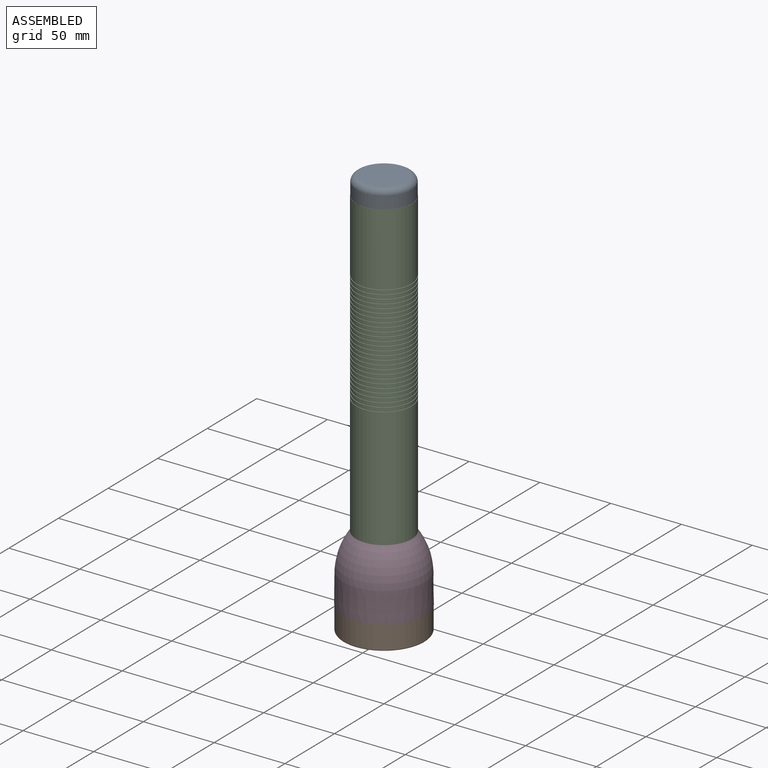
[diagram: assembled view]
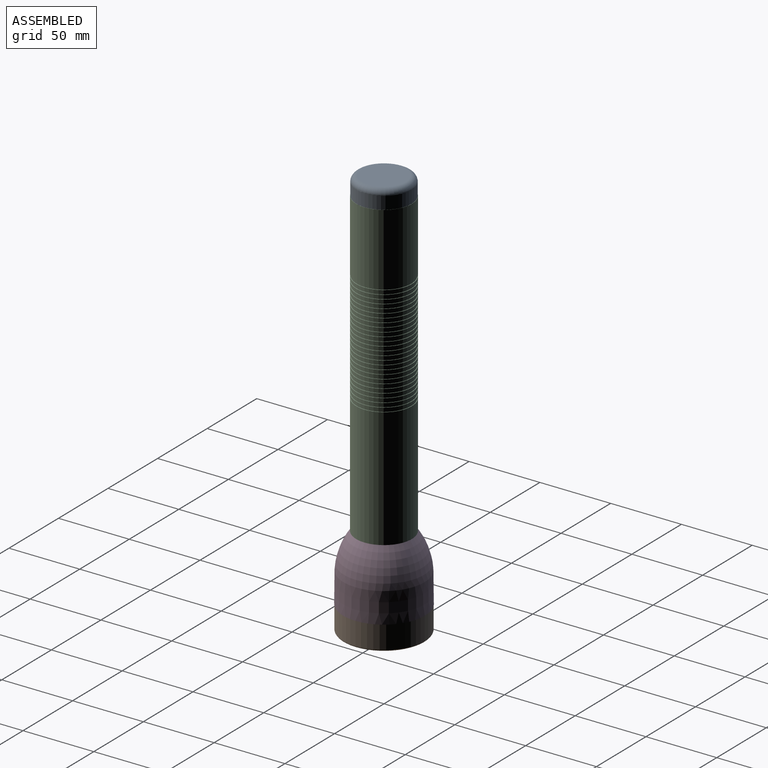
[diagram: assembled view, second angle]
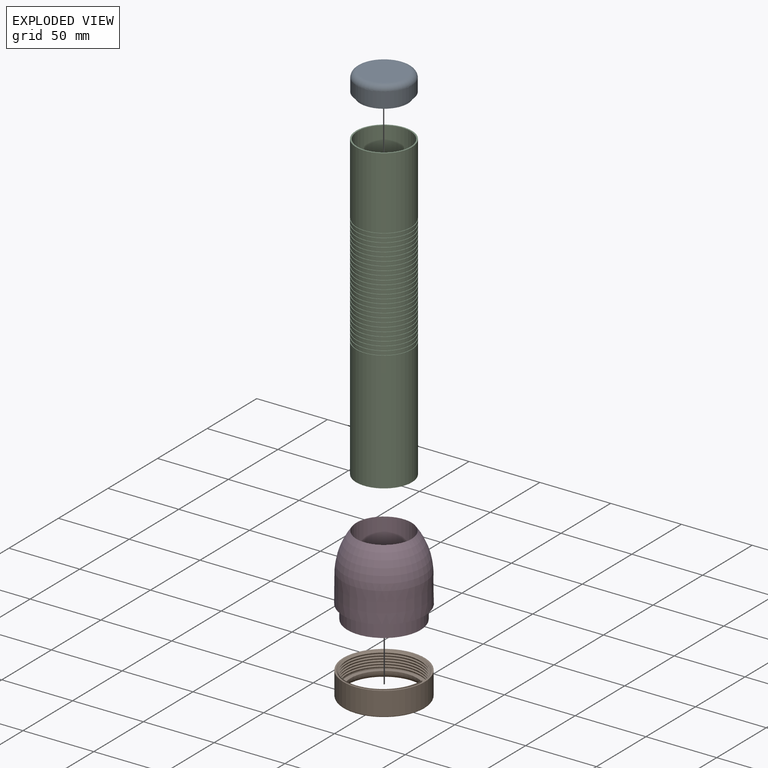
[diagram: exploded view]
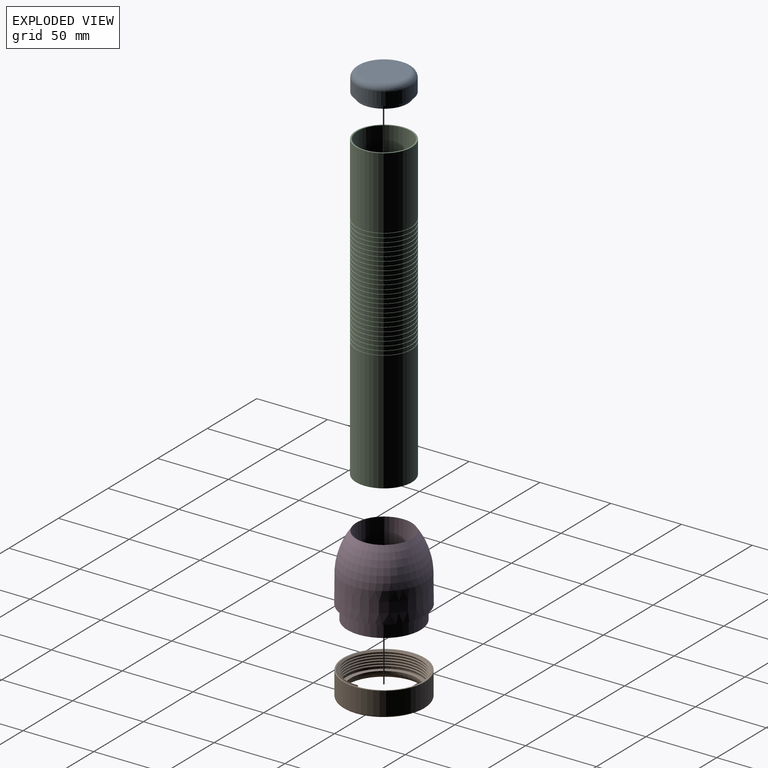
[diagram: exploded view, second angle]
ASSEMBLY  parts=4 mates=3
PART A: 6 faces, bbox 42.3x42.3x16 mm
  f0: cylinder r=19.56mm len=39.12mm, axis (0,0,-1), area 1096.3mm2, adj f1,f5
  f1: plane 39.12x39.12mm, normal (0,0,1), area 306.3mm2, adj f0,f3
  f2: plane 31.12x31.12mm, normal (0,0,-1), area 760.6mm2, adj f5
  f3: cylinder r=16.89mm len=33.77mm, axis (0,0,-1), area 328.9mm2, adj f1,f4
  f4: plane 33.77x33.77mm, normal (0,0,1), area 895.7mm2, adj f3
  f5: torus R=15.56mm, axis (0,0,1), area 714.8mm2, adj f0,f2
PART B: 20 faces, bbox 62.2x62.6x17.9 mm
  f0: cylinder r=23.7mm len=47.4mm, axis (0,0,-1), area 74.5mm2, adj f1,f11
  f1: plane 53.5x53.5mm, normal (0,0,1), area 483.4mm2, adj f0,f8
  f2: cylinder r=26.75mm len=26.04mm, axis (0,0,-1), area 6.7mm2, adj f3,f13,f17
  f3: cylinder r=26.75mm len=53.5mm, axis (0,0,-1), area 85.9mm2, adj f2,f4,f14,f17,f19
  f4: cylinder r=26.75mm len=53.5mm, axis (0,0,-1), area 86.9mm2, adj f3,f5,f17,f19
  f5: cylinder r=26.75mm len=53.5mm, axis (0,0,-1), area 86.7mm2, adj f4,f6,f17,f19
  f6: cylinder r=26.75mm len=53.5mm, axis (0,0,-1), area 86.9mm2, adj f5,f7,f17,f19
  f7: cylinder r=26.75mm len=53.5mm, axis (0,0,-1), area 86.8mm2, adj f6,f8,f17,f19
  f8: cylinder r=26.75mm len=53.5mm, axis (0,0,-1), area 173.4mm2, adj f1,f7,f15,f19
  f9: cylinder r=28.75mm len=57.5mm, axis (0,0,-1), area 2909.3mm2, adj f10,f12
  f10: plane 57.5x57.5mm, normal (0,0,1), area 177.5mm2, adj f9,f13
  f11: torus R=28.7mm, axis (0,0,1), area 1047.5mm2, adj f0,f12
  f12: torus R=27.75mm, axis (0,0,-1), area 321.8mm2, adj f9,f11
  f13: cone r=26.75mm half-angle=45deg, axis (0,0,1), area 193.8mm2, adj f2,f10,f14,f16,f17,f18
  f14: cone r=26.75mm half-angle=45deg, axis (0,0,1), area 0.6mm2, adj f3,f13,f19
  f15: plane 1.27x0.61mm, normal (0,-1,0), area 0.4mm2, adj f8,f17,f19
  f16: plane 1.61x0.95mm, normal (0,1,0), area 0.7mm2, adj f13,f17,f18,f19
  f17: bspline ~62.56x54.18mm, area 820.1mm2, adj f2,f3,f4,f5,f6,f7,f13,f15
  f18: bspline ~62.56x54.18mm, area 93.8mm2, adj f13,f16,f17
  f19: bspline ~62.15x53.82mm, area 1121mm2, adj f3,f4,f5,f6,f7,f8,f14,f15
PART C: 112 faces, bbox 39.4x39.4x214 mm
  f0: cylinder r=19.7mm len=39.39mm, axis (0,0,-1), area 247.5mm2, adj f27,f31
  f1: cylinder r=19.7mm len=39.39mm, axis (0,0,-1), area 247.5mm2, adj f30,f34
  f2: cylinder r=19.7mm len=39.39mm, axis (0,0,-1), area 247.5mm2, adj f33,f37
  f3: cylinder r=19.7mm len=39.39mm, axis (0,0,-1), area 247.5mm2, adj f36,f40
  f4: cylinder r=19.7mm len=39.39mm, axis (0,0,-1), area 247.5mm2, adj f39,f43
  f5: cylinder r=19.7mm len=39.39mm, axis (0,0,-1), area 247.5mm2, adj f42,f46
  f6: cylinder r=19.7mm len=39.39mm, axis (0,0,-1), area 247.5mm2, adj f45,f49
  f7: cylinder r=19.7mm len=39.39mm, axis (0,0,-1), area 247.5mm2, adj f48,f52
  f8: cylinder r=19.7mm len=39.39mm, axis (0,0,-1), area 247.5mm2, adj f51,f55
  f9: cylinder r=19.7mm len=39.39mm, axis (0,0,-1), area 247.5mm2, adj f54,f58
  f10: cylinder r=19.7mm len=39.39mm, axis (0,0,-1), area 247.5mm2, adj f57,f61
  f11: cylinder r=19.7mm len=39.39mm, axis (0,0,-1), area 247.5mm2, adj f60,f64
  f12: cylinder r=19.7mm len=39.39mm, axis (0,0,-1), area 247.5mm2, adj f63,f67
  f13: cylinder r=19.7mm len=39.39mm, axis (0,0,-1), area 247.5mm2, adj f66,f70
  f14: cylinder r=19.7mm len=39.39mm, axis (0,0,-1), area 247.5mm2, adj f69,f73
  f15: cylinder r=19.7mm len=39.39mm, axis (0,0,-1), area 247.5mm2, adj f72,f76
  f16: cylinder r=19.7mm len=39.39mm, axis (0,0,-1), area 247.5mm2, adj f75,f79
  f17: cylinder r=19.7mm len=39.39mm, axis (0,0,-1), area 247.5mm2, adj f78,f82
  f18: cylinder r=19.7mm len=39.39mm, axis (0,0,-1), area 247.5mm2, adj f81,f85
  f19: cylinder r=19.7mm len=39.39mm, axis (0,0,-1), area 247.5mm2, adj f84,f88
  f20: cylinder r=19.7mm len=39.39mm, axis (0,0,-1), area 247.5mm2, adj f87,f91
  f21: cylinder r=19.7mm len=39.39mm, axis (0,0,-1), area 247.5mm2, adj f90,f94
  f22: cylinder r=19.7mm len=39.39mm, axis (0,0,-1), area 247.5mm2, adj f93,f97
  f23: cylinder r=19.7mm len=39.39mm, axis (0,0,-1), area 247.5mm2, adj f96,f100
  f24: cylinder r=19.7mm len=39.39mm, axis (0,0,-1), area 247.5mm2, adj f99,f103
  f25: cylinder r=19.7mm len=39.39mm, axis (0,0,-1), area 247.5mm2, adj f102,f110
  f26: cylinder r=19.25mm len=38.5mm, axis (0,0,-1), area 121mm2, adj f27,f28
  f27: plane 39.39x39.39mm, normal (0,0,1), area 54.4mm2, adj f0,f26
  f28: plane 39.39x39.39mm, normal (0,0,-1), area 54.4mm2, adj f26,f104
  f29: cylinder r=19.25mm len=38.5mm, axis (0,0,-1), area 121mm2, adj f30,f31
  f30: plane 39.39x39.39mm, normal (0,0,1), area 54.4mm2, adj f1,f29
  f31: plane 39.39x39.39mm, normal (0,0,-1), area 54.4mm2, adj f0,f29
  f32: cylinder r=19.25mm len=38.5mm, axis (0,0,-1), area 121mm2, adj f33,f34
  f33: plane 39.39x39.39mm, normal (0,0,1), area 54.4mm2, adj f2,f32
  f34: plane 39.39x39.39mm, normal (0,0,-1), area 54.4mm2, adj f1,f32
  f35: cylinder r=19.25mm len=38.5mm, axis (0,0,-1), area 121mm2, adj f36,f37
  f36: plane 39.39x39.39mm, normal (0,0,1), area 54.4mm2, adj f3,f35
  f37: plane 39.39x39.39mm, normal (0,0,-1), area 54.4mm2, adj f2,f35
  f38: cylinder r=19.25mm len=38.5mm, axis (0,0,-1), area 121mm2, adj f39,f40
  f39: plane 39.39x39.39mm, normal (0,0,1), area 54.4mm2, adj f4,f38
  f40: plane 39.39x39.39mm, normal (0,0,-1), area 54.4mm2, adj f3,f38
  f41: cylinder r=19.25mm len=38.5mm, axis (0,0,-1), area 121mm2, adj f42,f43
  f42: plane 39.39x39.39mm, normal (0,0,1), area 54.4mm2, adj f5,f41
  f43: plane 39.39x39.39mm, normal (0,0,-1), area 54.4mm2, adj f4,f41
  f44: cylinder r=19.25mm len=38.5mm, axis (0,0,-1), area 121mm2, adj f45,f46
  f45: plane 39.39x39.39mm, normal (0,0,1), area 54.4mm2, adj f6,f44
  f46: plane 39.39x39.39mm, normal (0,0,-1), area 54.4mm2, adj f5,f44
  f47: cylinder r=19.25mm len=38.5mm, axis (0,0,-1), area 121mm2, adj f48,f49
  f48: plane 39.39x39.39mm, normal (0,0,1), area 54.4mm2, adj f7,f47
  f49: plane 39.39x39.39mm, normal (0,0,-1), area 54.4mm2, adj f6,f47
  f50: cylinder r=19.25mm len=38.5mm, axis (0,0,-1), area 121mm2, adj f51,f52
  f51: plane 39.39x39.39mm, normal (0,0,1), area 54.4mm2, adj f8,f50
  f52: plane 39.39x39.39mm, normal (0,0,-1), area 54.4mm2, adj f7,f50
  f53: cylinder r=19.25mm len=38.5mm, axis (0,0,-1), area 121mm2, adj f54,f55
  f54: plane 39.39x39.39mm, normal (0,0,1), area 54.4mm2, adj f9,f53
  f55: plane 39.39x39.39mm, normal (0,0,-1), area 54.4mm2, adj f8,f53
  f56: cylinder r=19.25mm len=38.5mm, axis (0,0,-1), area 121mm2, adj f57,f58
  f57: plane 39.39x39.39mm, normal (0,0,1), area 54.4mm2, adj f10,f56
  f58: plane 39.39x39.39mm, normal (0,0,-1), area 54.4mm2, adj f9,f56
  f59: cylinder r=19.25mm len=38.5mm, axis (0,0,-1), area 121mm2, adj f60,f61
  f60: plane 39.39x39.39mm, normal (0,0,1), area 54.4mm2, adj f11,f59
  f61: plane 39.39x39.39mm, normal (0,0,-1), area 54.4mm2, adj f10,f59
  f62: cylinder r=19.25mm len=38.5mm, axis (0,0,-1), area 121mm2, adj f63,f64
  f63: plane 39.39x39.39mm, normal (0,0,1), area 54.4mm2, adj f12,f62
  f64: plane 39.39x39.39mm, normal (0,0,-1), area 54.4mm2, adj f11,f62
  f65: cylinder r=19.25mm len=38.5mm, axis (0,0,-1), area 121mm2, adj f66,f67
  f66: plane 39.39x39.39mm, normal (0,0,1), area 54.4mm2, adj f13,f65
  f67: plane 39.39x39.39mm, normal (0,0,-1), area 54.4mm2, adj f12,f65
  f68: cylinder r=19.25mm len=38.5mm, axis (0,0,-1), area 121mm2, adj f69,f70
  f69: plane 39.39x39.39mm, normal (0,0,1), area 54.4mm2, adj f14,f68
  f70: plane 39.39x39.39mm, normal (0,0,-1), area 54.4mm2, adj f13,f68
  f71: cylinder r=19.25mm len=38.5mm, axis (0,0,-1), area 121mm2, adj f72,f73
  f72: plane 39.39x39.39mm, normal (0,0,1), area 54.4mm2, adj f15,f71
  f73: plane 39.39x39.39mm, normal (0,0,-1), area 54.4mm2, adj f14,f71
  f74: cylinder r=19.25mm len=38.5mm, axis (0,0,-1), area 121mm2, adj f75,f76
  f75: plane 39.39x39.39mm, normal (0,0,1), area 54.4mm2, adj f16,f74
  f76: plane 39.39x39.39mm, normal (0,0,-1), area 54.4mm2, adj f15,f74
  f77: cylinder r=19.25mm len=38.5mm, axis (0,0,-1), area 121mm2, adj f78,f79
  f78: plane 39.39x39.39mm, normal (0,0,1), area 54.4mm2, adj f17,f77
  f79: plane 39.39x39.39mm, normal (0,0,-1), area 54.4mm2, adj f16,f77
  f80: cylinder r=19.25mm len=38.5mm, axis (0,0,-1), area 121mm2, adj f81,f82
  f81: plane 39.39x39.39mm, normal (0,0,1), area 54.4mm2, adj f18,f80
  f82: plane 39.39x39.39mm, normal (0,0,-1), area 54.4mm2, adj f17,f80
  f83: cylinder r=19.25mm len=38.5mm, axis (0,0,-1), area 121mm2, adj f84,f85
  f84: plane 39.39x39.39mm, normal (0,0,1), area 54.4mm2, adj f19,f83
  f85: plane 39.39x39.39mm, normal (0,0,-1), area 54.4mm2, adj f18,f83
  f86: cylinder r=19.25mm len=38.5mm, axis (0,0,-1), area 121mm2, adj f87,f88
  f87: plane 39.39x39.39mm, normal (0,0,1), area 54.4mm2, adj f20,f86
  f88: plane 39.39x39.39mm, normal (0,0,-1), area 54.4mm2, adj f19,f86
  f89: cylinder r=19.25mm len=38.5mm, axis (0,0,-1), area 121mm2, adj f90,f91
  f90: plane 39.39x39.39mm, normal (0,0,1), area 54.4mm2, adj f21,f89
  f91: plane 39.39x39.39mm, normal (0,0,-1), area 54.4mm2, adj f20,f89
  f92: cylinder r=19.25mm len=38.5mm, axis (0,0,-1), area 121mm2, adj f93,f94
  f93: plane 39.39x39.39mm, normal (0,0,1), area 54.4mm2, adj f22,f92
  f94: plane 39.39x39.39mm, normal (0,0,-1), area 54.4mm2, adj f21,f92
  f95: cylinder r=19.25mm len=38.5mm, axis (0,0,-1), area 121mm2, adj f96,f97
  f96: plane 39.39x39.39mm, normal (0,0,1), area 54.4mm2, adj f23,f95
  f97: plane 39.39x39.39mm, normal (0,0,-1), area 54.4mm2, adj f22,f95
  f98: cylinder r=19.25mm len=38.5mm, axis (0,0,-1), area 121mm2, adj f99,f100
  f99: plane 39.39x39.39mm, normal (0,0,1), area 54.4mm2, adj f24,f98
  f100: plane 39.39x39.39mm, normal (0,0,-1), area 54.4mm2, adj f23,f98
  f101: cylinder r=19.25mm len=38.5mm, axis (0,0,-1), area 121mm2, adj f102,f103
  f102: plane 39.39x39.39mm, normal (0,0,1), area 54.4mm2, adj f25,f101
  f103: plane 39.39x39.39mm, normal (0,0,-1), area 54.4mm2, adj f24,f101
  f104: cylinder r=19.7mm len=50.18mm, axis (0,0,-1), area 6209.6mm2, adj f28,f107
  f105: cylinder r=18.7mm len=214mm, axis (0,0,-1), area 25137.3mm2, adj f107,f108
  f106: cylinder r=19.7mm len=84.82mm, axis (0,0,-1), area 10496.2mm2, adj f108,f111
  f107: plane 39.39x39.39mm, normal (0,0,1), area 120.6mm2, adj f104,f105
  f108: plane 39.39x39.39mm, normal (0,0,-1), area 120.6mm2, adj f105,f106
  f109: cylinder r=19.25mm len=38.5mm, axis (0,0,-1), area 121mm2, adj f110,f111
  f110: plane 39.39x39.39mm, normal (0,0,-1), area 54.4mm2, adj f25,f109
  f111: plane 39.39x39.39mm, normal (0,0,1), area 54.4mm2, adj f106,f109
PART D: 10 faces, bbox 57.7x57.7x56.4 mm
  f0: cylinder r=25.87mm len=51.73mm, axis (0,0,-1), area 1612.2mm2, adj f1,f9
  f1: cone r=25.87mm half-angle=37.8deg, axis (0,0,1), area 403.8mm2, adj f0,f2
  f2: cylinder r=24.3mm len=48.59mm, axis (0,0,-1), area 460.1mm2, adj f1,f3
  f3: cone r=24.3mm half-angle=16.9deg, axis (0,0,1), area 241.6mm2, adj f2,f4
  f4: cylinder r=23.83mm len=47.66mm, axis (0,0,-1), area 2339.1mm2, adj f3,f5
  f5: plane 47.66x47.66mm, normal (0,0,1), area 590.7mm2, adj f4,f6
  f6: cylinder r=19.49mm len=38.98mm, axis (0,0,-1), area 4193.4mm2, adj f5,f7
  f7: revolved ~57.3x57.3mm, area 4326.8mm2, adj f6,f8
  f8: cone r=28.87mm half-angle=0.6deg, axis (0,0,1), area 3854.4mm2, adj f7,f9
  f9: plane 57.73x57.73mm, normal (0,0,1), area 515.8mm2, adj f0,f8
PLACE A rot(axis=(0.71,-0.71,0),180deg) t=(42.6,3.66,239.65)mm
PLACE B t=(38.07,-24.68,-41)mm
PLACE C t=(0,0,12.73)mm
PLACE D rot(axis=(1,0,0),180deg) t=(10.63,0,0.46)mm
MATE fastened B.f0 <-> D.f0  axis (0,0,1) through (0,0,-33.78)mm
MATE fastened D.f0 <-> C.f0  axis (0,0,1) through (0,0,12.73)mm
MATE fastened C.f105 <-> A.f0  axis (0,0,-1) through (0,0,226.73)mm
